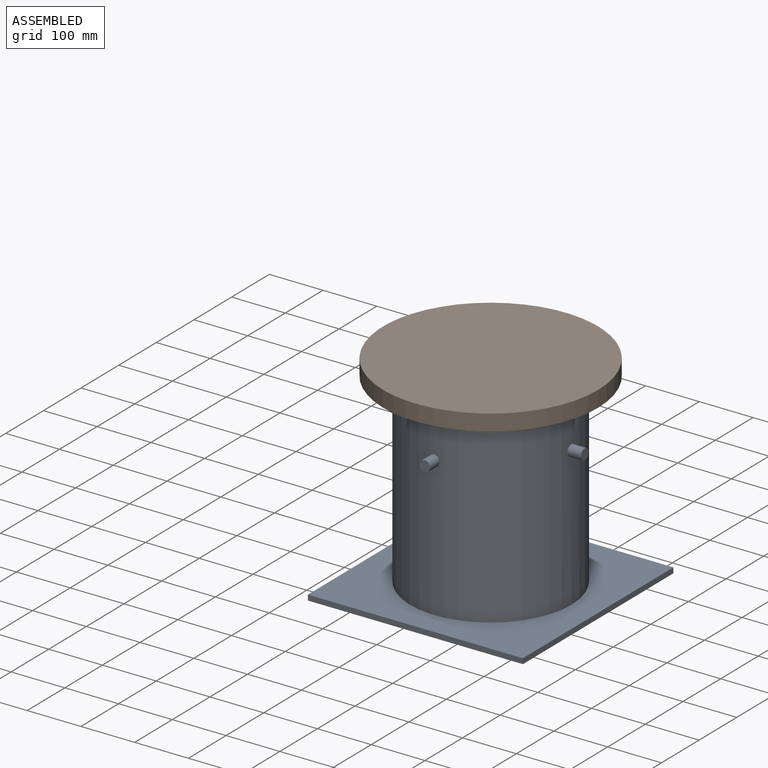
[diagram: assembled view]
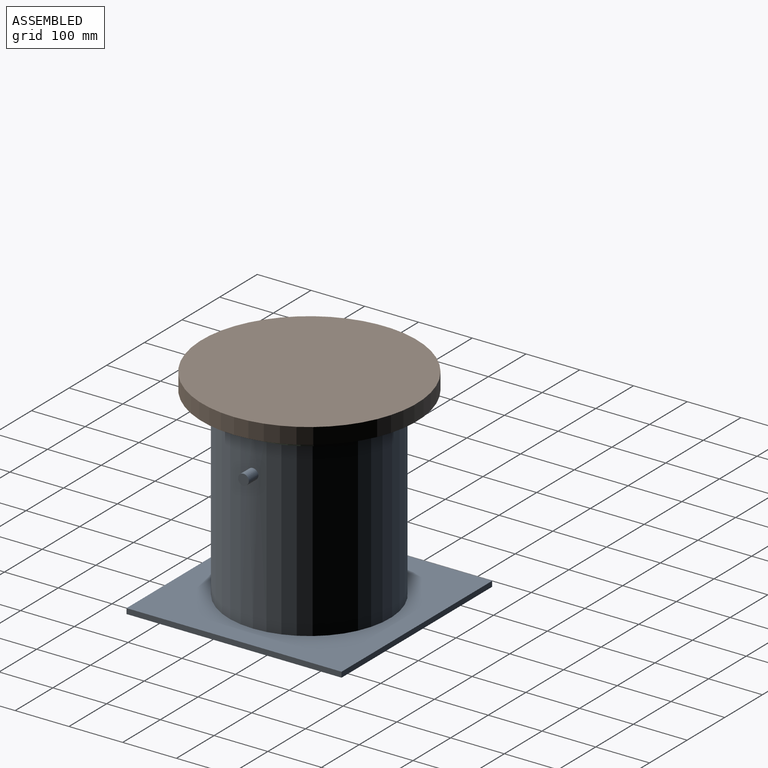
[diagram: assembled view, second angle]
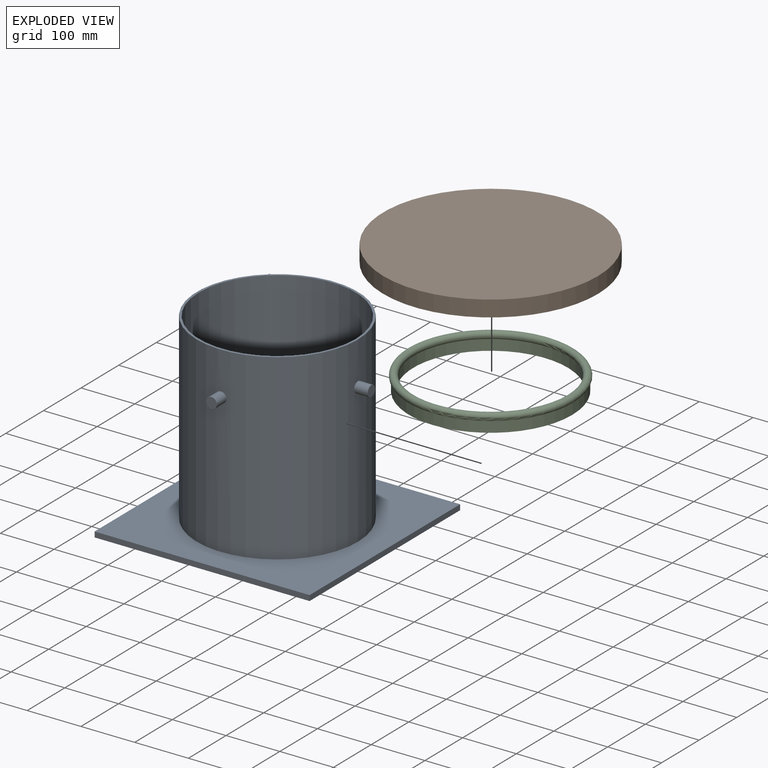
[diagram: exploded view]
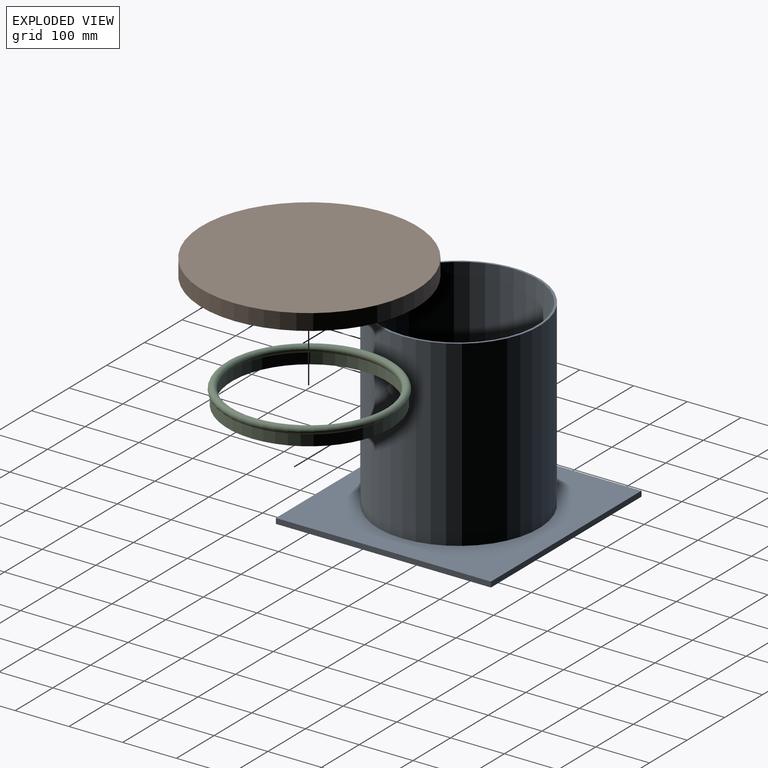
[diagram: exploded view, second angle]
ASSEMBLY  parts=3 mates=4
PART A: 16 faces, bbox 400x400x350 mm
  f0: cylinder r=146mm len=340mm, axis (0,0,-1), area 311897.3mm2, adj f2,f8
  f1: cylinder r=150mm len=340mm, axis (0,0,-1), area 319496.2mm2, adj f2,f3,f11,f13,f15
  f2: plane 300x300mm, normal (0,0,1), area 3719.6mm2, adj f0,f1
  f3: plane 400x400mm, normal (0,0,1), area 89314.2mm2, adj f1,f4,f5,f6,f7
  f4: plane 400x10mm, normal (0,1,0), area 4000mm2, adj f3,f5,f7,f9
  f5: plane 400x10mm, normal (1,0,0), area 4000mm2, adj f3,f4,f6,f9
  f6: plane 400x10mm, normal (0,-1,0), area 4000mm2, adj f3,f5,f7,f9
  f7: plane 400x10mm, normal (-1,0,0), area 4000mm2, adj f3,f4,f6,f9
  f8: plane 292x292mm, normal (0,0,1), area 66966.2mm2, adj f0
  f9: plane 400x400mm, normal (0,0,-1), area 160000mm2, adj f4,f5,f6,f7
  f10: plane 20x20mm, normal (1,0,0), area 314.2mm2, adj f11
  f11: cylinder r=10mm len=25.33mm, axis (-1,0,0), area 1581.3mm2, adj f1,f10
  f12: plane 20x20mm, normal (0,-1,0), area 314.2mm2, adj f13
  f13: cylinder r=10mm len=25.33mm, axis (0,1,0), area 1581.3mm2, adj f1,f12
  f14: plane 20x20mm, normal (-1,0,0), area 314.2mm2, adj f15
  f15: cylinder r=10mm len=25.33mm, axis (1,0,0), area 1581.3mm2, adj f1,f14
PART B: 7 faces, bbox 400x400x30 mm
  f0: cylinder r=200mm len=400mm, axis (0,0,-1), area 37699.1mm2, adj f1,f2
  f1: plane 400x400mm, normal (0,0,1), area 125663.7mm2, adj f0
  f2: plane 400x400mm, normal (0,0,-1), area 49209.9mm2, adj f0,f4
  f3: cylinder r=141mm len=282mm, axis (0,0,-1), area 7087.4mm2, adj f5,f6
  f4: cylinder r=156mm len=312mm, axis (0,0,-1), area 7841.4mm2, adj f2,f5
  f5: plane 312x312mm, normal (0,0,-1), area 13995.8mm2, adj f3,f4
  f6: plane 282x282mm, normal (0,0,-1), area 62458mm2, adj f3
PART C: 8 faces, bbox 335.5x335.5x25.7 mm
  f0: cylinder r=144mm len=288mm, axis (0,0,1), area 18095.6mm2, adj f1,f7
  f1: torus R=148mm, axis (0,0,1), area 32981mm2, adj f0,f2
  f2: cylinder r=152mm len=304mm, axis (0,0,1), area 19100.9mm2, adj f1,f3
  f3: plane 304x304mm, normal (0,0,-1), area 1897.5mm2, adj f2,f4
  f4: cylinder r=150mm len=300mm, axis (0,0,1), area 18849.6mm2, adj f3,f5
  f5: plane 300x300mm, normal (0,0,-1), area 3719.6mm2, adj f4,f6
  f6: cylinder r=146mm len=292mm, axis (0,0,1), area 18346.9mm2, adj f5,f7
  f7: plane 292x292mm, normal (0,0,-1), area 1822.1mm2, adj f0,f6
PLACE A t=(-264.35,-147.85,1.89)mm
PLACE B t=(-264.35,-147.85,356.64)mm
PLACE C t=(-264.35,-147.85,333.65)mm
MATE cylindrical C.f0 <-> A.f0  axis (0,0,1) through (-264.35,-147.85,341.89)mm
MATE cylindrical B.f0 <-> A.f0  axis (0,0,-1) through (-264.35,-147.85,371.64)mm
MATE fastened C.f0 <-> A.f0  axis (0,0,-1) through (-264.35,-147.85,351.89)mm
MATE fastened B.f0 <-> C.f0  axis (0,0,-1) through (-264.35,-147.85,364.64)mm
